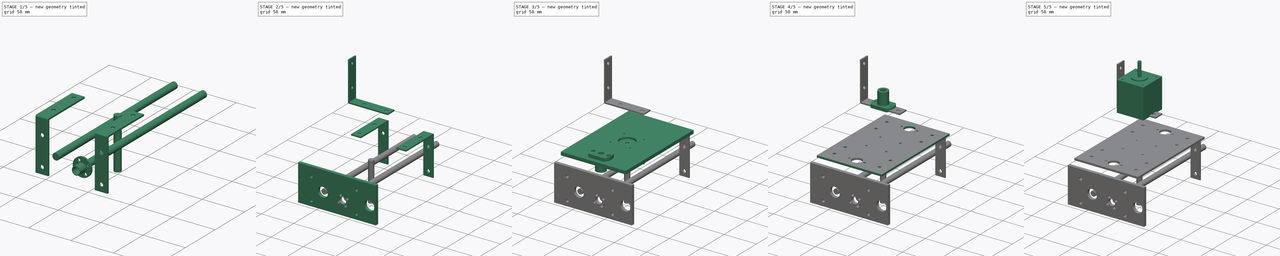
[diagram: build sequence overview — one tinted view per stage of 5, left to right]
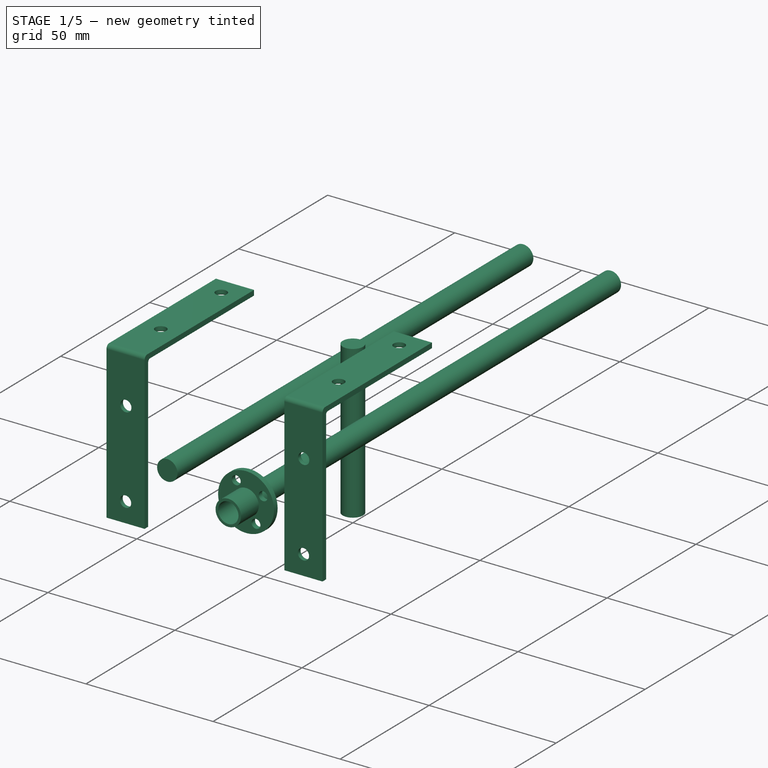
[diagram: stage 1 of 5 — iso view after this stage's code; geometry added in this stage tinted green]
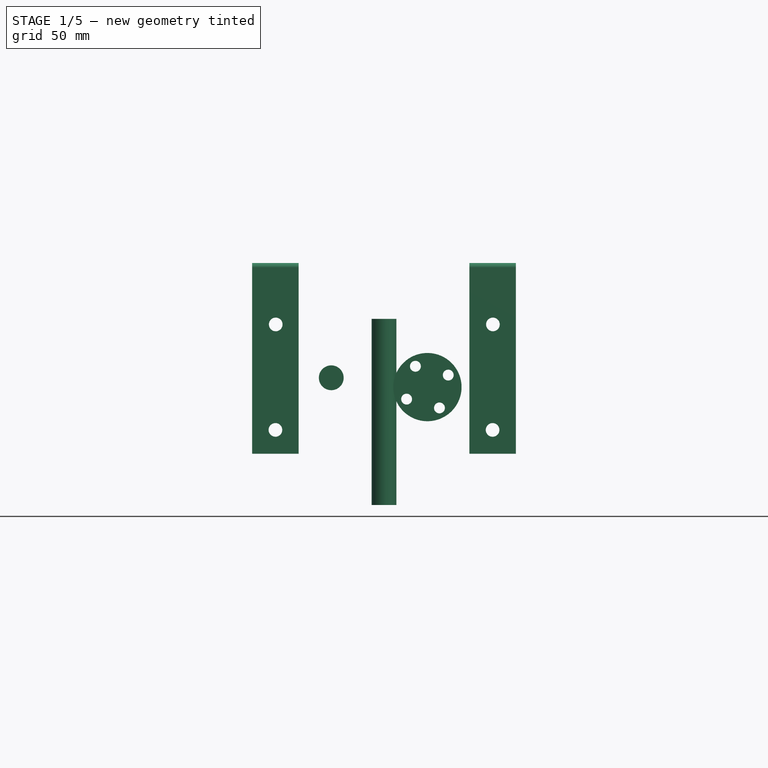
[diagram: stage 1 of 5 — front view after this stage's code; geometry added in this stage tinted green]
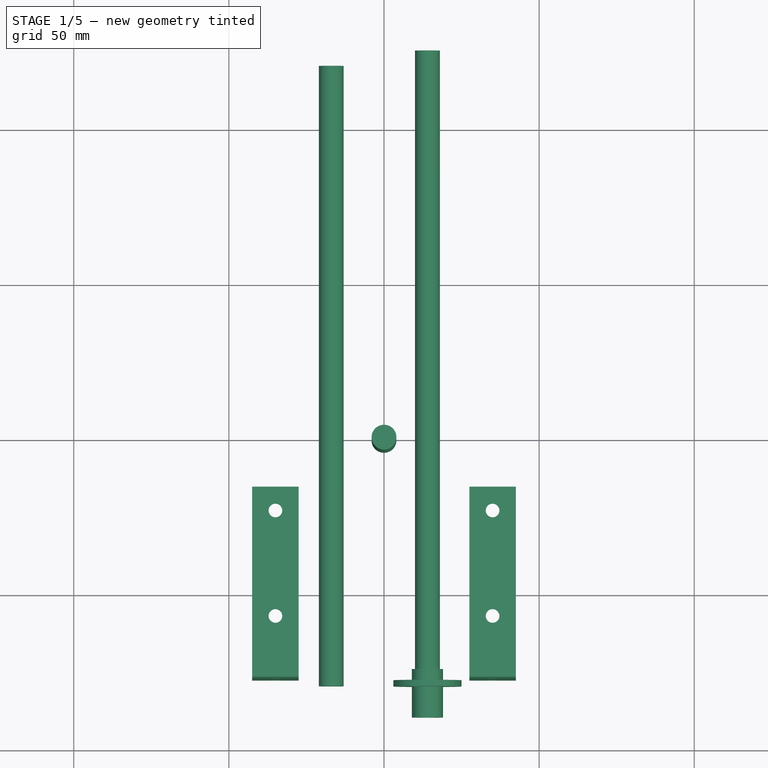
[diagram: stage 1 of 5 — top view after this stage's code; geometry added in this stage tinted green]
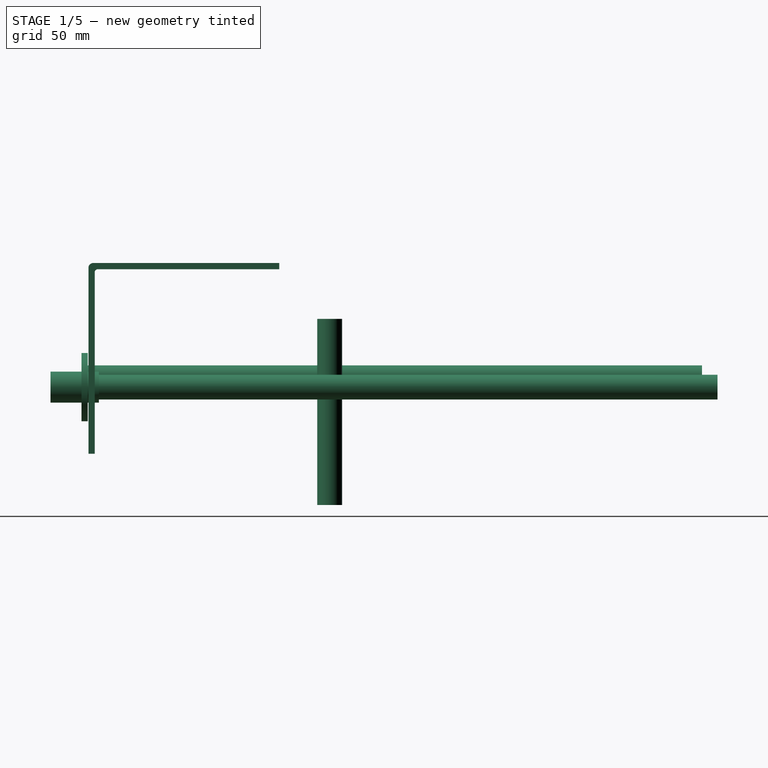
[diagram: stage 1 of 5 — right view after this stage's code; geometry added in this stage tinted green]
FCSTD DOCUMENT  (FreeCAD 0.17R13541 (Git))
Label: pieceTop
License: All rights reserved
LicenseURL: http://en.wikipedia.org/wiki/All_rights_reserved
objects: Sketcher::SketchObject×40, PartDesign::Pocket×23, PartDesign::Body×15, PartDesign::Pad×14, PartDesign::ShapeBinder×11, PartDesign::FeatureBase×8, PartDesign::Fillet×4, Part::Cylinder×3, PartDesign::Plane×2, App::Part×2, App::DocumentObjectGroup×1
note: 157 computed .brp shape members not serialized (recipe doc carries the construction recipe); baked Part::Feature solids carry a one-line shape summary decoded from their .brp

FEATURE [PartDesign::FeatureBase] Clone007  label="L3"
  Placement = pos=(35,-47,-55) rot=(0.707107,0.707107,0;3.14159rad)
FEATURE [PartDesign::FeatureBase] Clone008  label="L4"
  Placement = pos=(-35,-47,-55) rot=(0.707107,0.707107,0;3.14159rad)
FEATURE [Part::Cylinder] Cylinder
  Angle = 360
  AttacherType = Attacher::AttachEngine3D
  Height = 60
  Placement = pos=(0,0,-133) rot=(0,0,1;0rad)
  Radius = 4
FEATURE [PartDesign::ShapeBinder] ShapeBinder007
  Placement = pos=(0,0,-133) rot=(0,0,1;0rad)
  Support = -> [Cylinder]
FEATURE [Sketcher::SketchObject] Sketch039
  MapMode = 5
  Support = -> [XY_Plane020]
  sketch-geometry (1):
    g0: Circle CenterX=0 CenterY=0 CenterZ=0 NormalX=0 NormalY=0 NormalZ=1 AngleXU=0 Radius=11
  constraints (2):
    c: Coincident(g0,g-1)
    c: Radius(g0) = 11
FEATURE [PartDesign::Pad] Pad014
  Length = 2
  Length2 = 100
  Profile = -> Sketch039
  Type = 0
FEATURE [Sketcher::SketchObject] Sketch040
  MapMode = 5
  Placement = pos=(0,0,2) rot=(0,0,1;0rad)
  Support = -> [Pad014]
FEATURE [Sketcher::SketchObject] Sketch041
  MapMode = 5
  Placement = pos=(0,0,2) rot=(0,0,1;0rad)
  Support = -> [Pad014]
  sketch-geometry (5):
    g0: Circle CenterX=0 CenterY=0 CenterZ=0 NormalX=0 NormalY=0 NormalZ=1 AngleXU=0 Radius=4
    g1: Circle CenterX=0 CenterY=-7.75 CenterZ=0 NormalX=0 NormalY=0 NormalZ=1 AngleXU=0 Radius=1.75
    g2: Circle CenterX=-7.75 CenterY=0 CenterZ=0 NormalX=0 NormalY=0 NormalZ=1 AngleXU=0 Radius=1.75
    g3: Circle CenterX=0 CenterY=7.75 CenterZ=0 NormalX=0 NormalY=0 NormalZ=1 AngleXU=0 Radius=1.75
    g4: Circle CenterX=7.75 CenterY=0 CenterZ=0 NormalX=0 NormalY=0 NormalZ=1 AngleXU=0 Radius=1.75
  constraints (12):
    c: Radius(g0) = 4
    c: PointOnObject(g1,g-2)
    c: Radius(g1) = 1.75
    c: DistanceY(g1,g-1) = 7.75
    c: Radius(g2) = 1.75
    c: DistanceX(g2,g-1) = 7.75
    c: DistanceY(g-1,g2) = 0
    c: PointOnObject(g3,g-2)
    c: Radius(g3) = 1.75
    c: DistanceY(g-1,g3) = 7.75
    c: DistanceX(g-1,g4) = 7.75
    c: Radius(g4) = 1.75
FEATURE [PartDesign::Pocket] Pocket024
  BaseFeature = -> Pad014
  Length = 5
  Length2 = 100
  Profile = -> Sketch041
  Type = 1
FEATURE [Sketcher::SketchObject] Sketch042
  MapMode = 5
  Placement = pos=(0,0,2) rot=(0,0,1;0rad)
  Support = -> [Pocket024]
  sketch-geometry (1):
    g0: Circle CenterX=0 CenterY=0 CenterZ=0 NormalX=0 NormalY=0 NormalZ=1 AngleXU=0 Radius=5
  constraints (2):
    c: PointOnObject(g0,g-1)
    c: Radius(g0) = 5
FEATURE [PartDesign::Pad] Pad015
  BaseFeature = -> Pocket024
  Length = 10
  Length2 = 5.6
  Profile = -> Sketch042
  Type = 4
FEATURE [Sketcher::SketchObject] Sketch043
  ExternalGeometry = -> [Pad015]
  MapMode = 5
  Placement = pos=(0,0,12) rot=(0,0,1;0rad)
  Support = -> [Pad015]
  sketch-geometry (1):
    g0: Circle CenterX=0 CenterY=0 CenterZ=0 NormalX=0 NormalY=0 NormalZ=1 AngleXU=0 Radius=4
  constraints (2):
    c: Coincident(g0,g-1)
    c: Radius(g0) = 4
FEATURE [PartDesign::Pocket] Pocket025
  BaseFeature = -> Pad015
  Length = 5
  Length2 = 100
  Profile = -> Sketch043
  Type = 1
FEATURE [Sketcher::SketchObject] Sketch044
  MapMode = 5
  Support = -> [XY_Plane020]
FEATURE [PartDesign::Body] Body008  label="Nut"
  Group = -> [Sketch039,Pad014,Sketch040,Sketch041,Pocket024,Sketch042,Pad015,Sketch043,Pocket025,Sketch044]
  Origin = -> Origin020
  Tip = -> Pocket025
FEATURE [App::DocumentObjectGroup] Group
  Group = -> [Body008]
FEATURE [PartDesign::FeatureBase] Clone009  label="NutClone"
  BaseFeature = -> Body008
  Placement = pos=(14,-78,-95) rot=(0.935113,-0.250563,0.250563;1.63783rad)
FEATURE [PartDesign::Body] Body006
  Group = -> [Sketch033,ShapeBinder005,ShapeBinder006,Pad013,Sketch038,Pocket023,ShapeBinder007,ShapeBinder008]
  Origin = -> Origin013
  Tip = -> Pocket023
FEATURE [Part::Cylinder] Cylinder001
  Angle = 360
  AttacherType = Attacher::AttachEngine3D
  Height = 200
  Placement = pos=(14,125,-95) rot=(1,0,0;1.5708rad)
  Radius = 4
FEATURE [Part::Cylinder] Cylinder002
  Angle = 360
  AttacherType = Attacher::AttachEngine3D
  Height = 200
  Placement = pos=(-17,120,-92) rot=(1,0,0;1.5708rad)
  Radius = 4
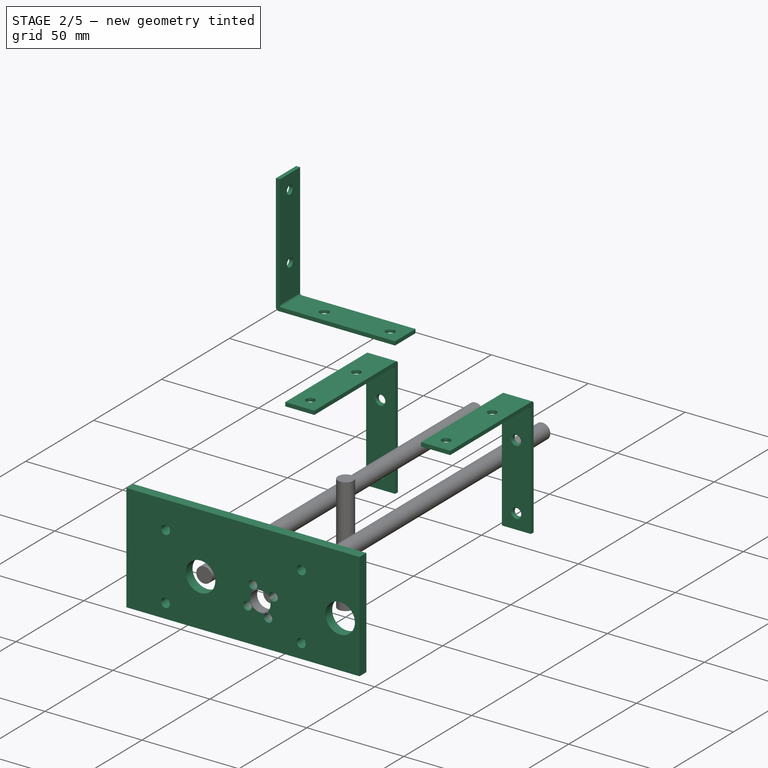
[diagram: stage 2 of 5 — iso view after this stage's code; geometry added in this stage tinted green]
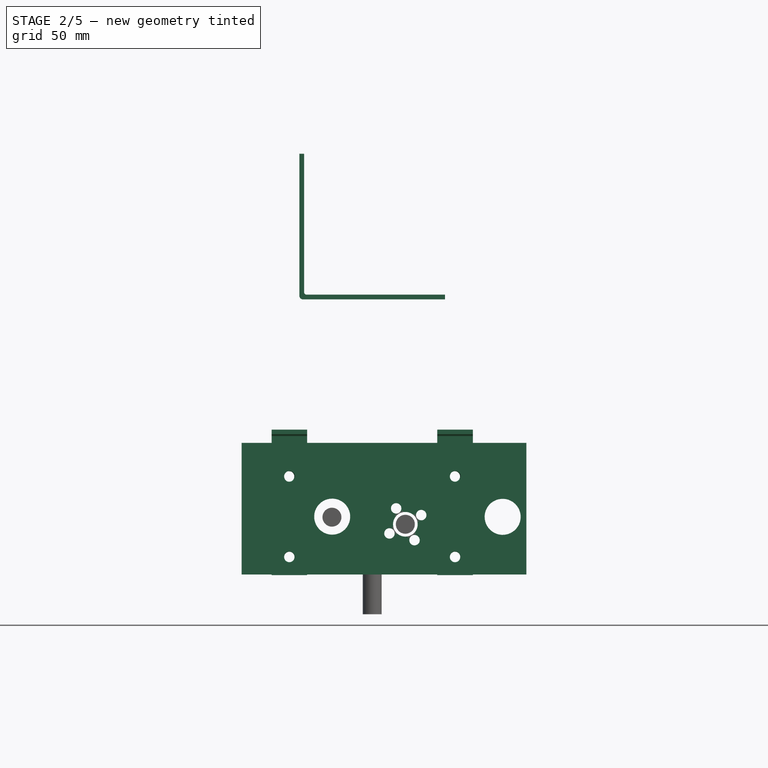
[diagram: stage 2 of 5 — front view after this stage's code; geometry added in this stage tinted green]
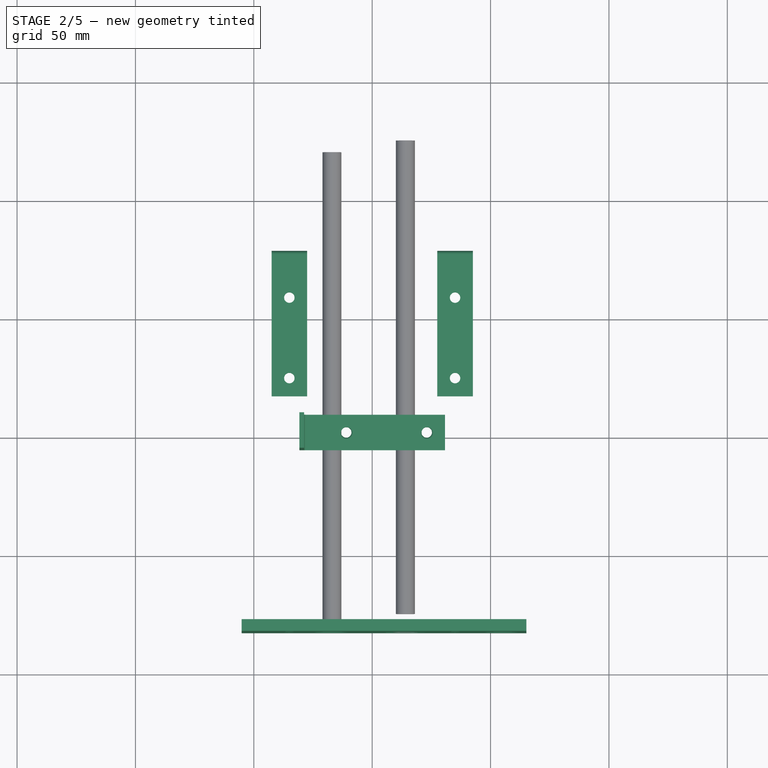
[diagram: stage 2 of 5 — top view after this stage's code; geometry added in this stage tinted green]
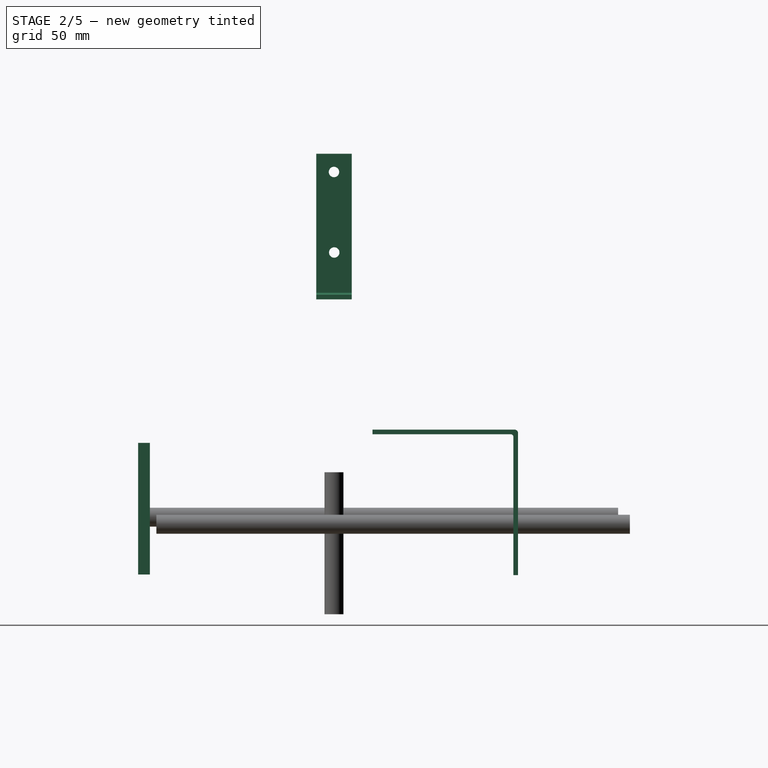
[diagram: stage 2 of 5 — right view after this stage's code; geometry added in this stage tinted green]
FEATURE [PartDesign::Body] Body005
  Group = -> [ShapeBinder003,DatumPlane,Sketch031,Pad010,Sketch032,Pocket020,ShapeBinder004]
  Origin = -> Origin005
  Tip = -> Pocket020
FEATURE [PartDesign::ShapeBinder] CopyClone004
  Placement = pos=(-35,-52,-55) rot=(0.707107,0.707107,0;3.14159rad)
FEATURE [PartDesign::Plane] DatumPlane001
  MapMode = 5
  Placement = pos=(-35,-77.75,-55) rot=(0,0.707107,-0.707107;3.14159rad)
  Support = -> [CopyClone004]
FEATURE [PartDesign::Body] CloneBody
  Group = -> [Clone,DatumPlane001,CopyClone004]
  Origin = -> Origin010
  Tip = -> Clone
FEATURE [App::Part] Part
  Group = -> [Clone002Body,Clone001Body,CloneBody]
  License = CC BY 3.0
  LicenseURL = http://creativecommons.org/licenses/by/3.0/
  Origin = -> Origin006
FEATURE [Sketcher::SketchObject] Sketch034
  MapMode = 5
  Support = -> [XY_Plane014]
  sketch-geometry (4):
    g0: LineSegment StartX=-30.75 StartY=7.5 StartZ=0 EndX=30.75 EndY=7.5 EndZ=0
    g1: LineSegment StartX=30.75 StartY=7.5 StartZ=0 EndX=30.75 EndY=-7.5 EndZ=0
    g2: LineSegment StartX=30.75 StartY=-7.5 StartZ=0 EndX=-30.75 EndY=-7.5 EndZ=0
    g3: LineSegment StartX=-30.75 StartY=-7.5 StartZ=0 EndX=-30.75 EndY=7.5 EndZ=0
  constraints (11):
    c: Coincident(g0,g1)
    c: Coincident(g1,g2)
    c: Coincident(g2,g3)
    c: Coincident(g3,g0)
    c: Horizontal(g0)
    c: Horizontal(g2)
    c: Vertical(g1)
    c: Vertical(g3)
    c: DistanceX(g0,g0) = 61.5
    c: DistanceY(g1,g1) = 15
    c: Symmetric(g0,g1,g-1)
FEATURE [PartDesign::Pad] Pad011
  Length = 2
  Length2 = 100
  Profile = -> Sketch034
  Type = 0
FEATURE [Sketcher::SketchObject] Sketch035
  ExternalGeometry = -> [Pad011]
  MapMode = 5
  Placement = pos=(0,0,2) rot=(0,0,1;0rad)
  Support = -> [Pad011]
  sketch-geometry (5):
    g0: LineSegment StartX=-30.75 StartY=7.5 StartZ=0 EndX=-28.75 EndY=7.5 EndZ=0
    g1: LineSegment StartX=-28.75 StartY=7.5 StartZ=0 EndX=-28.75 EndY=-7.5 EndZ=0
    g2: LineSegment StartX=-28.75 StartY=-7.5 StartZ=0 EndX=-30.75 EndY=-7.5 EndZ=0
    g3: LineSegment StartX=-30.75 StartY=-7.5 StartZ=0 EndX=-30.75 EndY=7.5 EndZ=0
    g4: GeomPoint X=-11 Y=7.5 Z=0
  constraints (13):
    c: Coincident(g0,g1)
    c: Coincident(g1,g2)
    c: Coincident(g2,g3)
    c: Coincident(g3,g0)
    c: Horizontal(g0)
    c: Horizontal(g2)
    c: Vertical(g1)
    c: Vertical(g3)
    c: PointOnObject(g0,g-3)
    c: PointOnObject(g1,g-5)
    c: PointOnObject(g4,g-4)
    c: DistanceY(g0,g4) = 0
    c: DistanceX(g2,g2) = 2
FEATURE [PartDesign::Pad] Pad012
  BaseFeature = -> Pad011
  Length = 59.5
  Length2 = 100
  Profile = -> Sketch035
  Type = 0
FEATURE [PartDesign::Fillet] Fillet
  Base = -> Pad012 [Edge7]
  BaseFeature = -> Pad012
  Radius = 1.5
FEATURE [PartDesign::Fillet] Fillet001
  Base = -> Fillet [Edge17]
  BaseFeature = -> Fillet
  Radius = 1
FEATURE [Sketcher::SketchObject] Sketch036
  ExternalGeometry = -> [Fillet001]
  MapMode = 5
  Placement = pos=(0,0,2) rot=(0,0,1;0rad)
  Support = -> [Fillet001]
  sketch-geometry (7):
    g0: Circle CenterX=23.05 CenterY=0 CenterZ=0 NormalX=0 NormalY=0 NormalZ=1 AngleXU=0 Radius=2.2
    g1: LineSegment [constr] StartX=23.05 StartY=7.5 StartZ=0 EndX=23.05 EndY=0 EndZ=0
    g2: LineSegment [constr] StartX=23.05 StartY=0 StartZ=0 EndX=23.05 EndY=-7.5 EndZ=0
    g3: GeomPoint X=30.75 Y=-3.56525 Z=0
    g4: GeomPoint X=-8 Y=7.5 Z=0
    g5: GeomPoint X=-8.63892 Y=-7.5 Z=0
    g6: Circle CenterX=-10.95 CenterY=0 CenterZ=0 NormalX=0 NormalY=0 NormalZ=1 AngleXU=0 Radius=2.2
  constraints (15):
    c: Radius(g0) = 2.2
    c: PointOnObject(g1,g-3)
    c: Coincident(g1,g0)
    c: Coincident(g2,g0)
    c: PointOnObject(g2,g-4)
    c: Vertical(g2)
    c: Equal(g1,g2)
    c: Vertical(g1)
    c: PointOnObject(g3,g-5)
    c: DistanceX(g0,g3) = 7.7
    c: PointOnObject(g4,g-3)
    c: PointOnObject(g5,g-4)
    c: PointOnObject(g6,g-1)
    c: Radius(g6) = 2.2
    c: DistanceX(g6,g0) = 34
FEATURE [PartDesign::Pocket] Pocket021
  BaseFeature = -> Fillet001
  Length = 5
  Length2 = 100
  Profile = -> Sketch036
  Type = 1
FEATURE [PartDesign::Fillet] Fillet002
  Base = -> Pocket021 [Edge12,Edge11]
  BaseFeature = -> Pocket021
  Radius = 0.7
FEATURE [Sketcher::SketchObject] Sketch037
  ExternalGeometry = -> [Fillet002]
  MapMode = 5
  Placement = pos=(-28.75,0,0) rot=(0.57735,0.57735,0.57735;2.0944rad)
  Support = -> [Fillet002]
  sketch-geometry (9):
    g0: Circle CenterX=0 CenterY=53.8 CenterZ=0 NormalX=0 NormalY=0 NormalZ=1 AngleXU=0 Radius=2.2
    g1: GeomPoint X=-7.5 Y=53.8 Z=0
    g2: GeomPoint X=-3.67932 Y=61.5 Z=0
    g3: GeomPoint X=7.5 Y=53.8 Z=0
    g4: LineSegment [constr] StartX=-7.5 StartY=53.8 StartZ=0 EndX=0 EndY=53.8 EndZ=0
    g5: LineSegment [constr] StartX=7.5 StartY=53.8 StartZ=0 EndX=0 EndY=53.8 EndZ=0
    g6: Circle CenterX=0.10123 CenterY=19.8 CenterZ=0 NormalX=0 NormalY=0 NormalZ=1 AngleXU=0 Radius=2.2
    g7: LineSegment [constr] StartX=0.10123 StartY=19.8 StartZ=0 EndX=-7.5 EndY=19.8 EndZ=0
    g8: LineSegment [constr] StartX=-0.10123 StartY=31.6344 StartZ=0 EndX=7.5 EndY=31.6344 EndZ=0
  constraints (20):
    c: Radius(g0) = 2.2
    c: PointOnObject(g1,g-3)
    c: PointOnObject(g2,g-4)
    c: PointOnObject(g3,g-5)
    c: Coincident(g4,g1)
    c: Coincident(g4,g0)
    c: Coincident(g5,g3)
    c: Coincident(g5,g0)
    c: Equal(g4,g5)
    c: Horizontal(g4)
    c: Horizontal(g5)
    c: DistanceY(g0,g2) = 7.7
    c: Radius(g6) = 2.2
    c: Coincident(g7,g6)
    c: PointOnObject(g7,g-3)
    c: PointOnObject(g8,g-5)
    c: Equal(g7,g8)
    c: Horizontal(g7)
    c: Horizontal(g8)
    c: DistanceY(g6,g0) = 34
FEATURE [PartDesign::Pocket] Pocket022
  BaseFeature = -> Fillet002
  Length = 5
  Length2 = 100
  Profile = -> Sketch037
  Type = 1
FEATURE [PartDesign::Body] Body007  label="L6-original"
  Group = -> [Sketch034,Pad011,Sketch035,Pad012,Fillet,Fillet001,Sketch036,Pocket021,Fillet002,Sketch037,Pocket022,Fillet003]
  Origin = -> Origin014
  Tip = -> Fillet003
FEATURE [PartDesign::FeatureBase] Clone005  label="L1"
  Placement = pos=(-35,47,-55) rot=(0.707107,-0.707107,0;3.14159rad)
FEATURE [PartDesign::FeatureBase] Clone006  label="L2"
  Placement = pos=(35,47,-55) rot=(0.707107,-0.707107,0;3.14159rad)
FEATURE [PartDesign::Body] Clone008Body
  Group = -> [Clone008]
  Origin = -> Origin016
  Tip = -> Clone008
FEATURE [PartDesign::Body] Clone007Body
  Group = -> [Clone007]
  Origin = -> Origin017
  Tip = -> Clone007
FEATURE [PartDesign::Body] Clone005Body
  Group = -> [Clone005]
  Origin = -> Origin018
  Tip = -> Clone005
FEATURE [PartDesign::Body] Clone006Body  label="L005"
  Group = -> [Clone006]
  Origin = -> Origin019
  Tip = -> Clone006
FEATURE [App::Part] Part001
  Group = -> [Clone008Body,Clone007Body,Clone005Body,Clone006Body]
  License = CC BY 3.0
  LicenseURL = http://creativecommons.org/licenses/by/3.0/
  Origin = -> Origin015
FEATURE [PartDesign::ShapeBinder] ShapeBinder005  label="L4-Face"
  Placement = pos=(-35,-47,-55) rot=(0.707107,0.707107,0;3.14159rad)
  Support = -> [Clone008]
FEATURE [PartDesign::ShapeBinder] ShapeBinder006  label="L3-Face"
  Placement = pos=(35,-47,-55) rot=(0.707107,0.707107,0;3.14159rad)
  Support = -> [Clone007]
FEATURE [Sketcher::SketchObject] Sketch033
  ExternalGeometry = -> [ShapeBinder006,ShapeBinder005]
  MapMode = 5
  Placement = pos=(-35,-77.75,-55) rot=(0,0.707107,-0.707107;3.14159rad)
  sketch-geometry (4):
    g0: LineSegment StartX=20.1315 StartY=5.61764 StartZ=0 EndX=-100.101 EndY=5.61764 EndZ=0
    g1: LineSegment StartX=-100.101 StartY=5.61764 StartZ=0 EndX=-100.101 EndY=61.2044 EndZ=0
    g2: LineSegment StartX=-100.101 StartY=61.2044 StartZ=0 EndX=20.1315 EndY=61.2044 EndZ=0
    g3: LineSegment StartX=20.1315 StartY=61.2044 StartZ=0 EndX=20.1315 EndY=5.61764 EndZ=0
  constraints (9):
    c: Coincident(g0,g1)
    c: Coincident(g1,g2)
    c: Coincident(g2,g3)
    c: Coincident(g3,g0)
    c: Horizontal(g0)
    c: Horizontal(g2)
    c: Vertical(g1)
    c: Vertical(g3)
    c: DistanceX(g0,g-3) = 30
FEATURE [PartDesign::Pad] Pad013
  Length = 5
  Length2 = 100
  Placement = pos=(-35,-77.75,-55) rot=(0,0.707107,-0.707107;3.14159rad)
  Profile = -> Sketch033
  Type = 0
FEATURE [PartDesign::ShapeBinder] ShapeBinder008  label="Nut001"
  Placement = pos=(14,-78,-95) rot=(0.935113,-0.250563,0.250563;1.63783rad)
  Support = -> [Clone009]
FEATURE [Sketcher::SketchObject] Sketch038
  ExternalGeometry = -> [Sketch033,ShapeBinder005,ShapeBinder008]
  MapMode = 5
  Placement = pos=(-35,-82.75,-55) rot=(0,0.707107,-0.707107;3.14159rad)
  Support = -> [Pad013]
  sketch-geometry (15):
    g0: Circle CenterX=-70 CenterY=53.8 CenterZ=0 NormalX=0 NormalY=0 NormalZ=1 AngleXU=0 Radius=2.3
    g1: Circle CenterX=-70.1012 CenterY=19.8 CenterZ=0 NormalX=0 NormalY=0 NormalZ=1 AngleXU=0 Radius=2.3
    g2: Circle CenterX=0 CenterY=53.8 CenterZ=0 NormalX=0 NormalY=0 NormalZ=1 AngleXU=0 Radius=2.3
    g3: Circle CenterX=-0.10123 CenterY=19.8 CenterZ=0 NormalX=0 NormalY=0 NormalZ=1 AngleXU=0 Radius=2.3
    g4: Circle CenterX=-90.1012 CenterY=36.8597 CenterZ=0 NormalX=0 NormalY=0 NormalZ=1 AngleXU=0 Radius=7.6
    g5: LineSegment [constr] StartX=-90.1012 StartY=36.8597 StartZ=0 EndX=-70 EndY=53.8 EndZ=0
    g6: LineSegment [constr] StartX=-90.1012 StartY=36.8597 StartZ=0 EndX=-70.1012 EndY=19.8 EndZ=0
    g7: Circle CenterX=-18.1012 CenterY=36.7772 CenterZ=0 NormalX=0 NormalY=0 NormalZ=1 AngleXU=0 Radius=7.6
    g8: LineSegment [constr] StartX=-0.588034 StartY=54.2561 StartZ=0 EndX=-18.1012 EndY=36.7772 EndZ=0
    g9: LineSegment [constr] StartX=-18.1012 StartY=36.7772 StartZ=0 EndX=-0.10123 EndY=19.8 EndZ=0
    g10: Circle CenterX=-52.875 CenterY=46.7117 CenterZ=0 NormalX=0 NormalY=0 NormalZ=1 AngleXU=0 Radius=2.2
    g11: Circle CenterX=-55.7117 CenterY=36.125 CenterZ=0 NormalX=0 NormalY=0 NormalZ=1 AngleXU=0 Radius=2.2
    g12: Circle CenterX=-45.125 CenterY=33.2883 CenterZ=0 NormalX=0 NormalY=0 NormalZ=1 AngleXU=0 Radius=2.2
    g13: Circle CenterX=-42.2883 CenterY=43.875 CenterZ=0 NormalX=0 NormalY=0 NormalZ=1 AngleXU=0 Radius=2.2
    g14: Circle CenterX=-49 CenterY=40 CenterZ=0 NormalX=0 NormalY=0 NormalZ=1 AngleXU=0 Radius=5.2
  constraints (26):
    c: Radius(g2) = 2.3
    c: Radius(g3) = 2.3
    c: Radius(g1) = 2.3
    c: Radius(g0) = 2.3
    c: Coincident(g5,g4)
    c: Coincident(g5,g0)
    c: Coincident(g6,g4)
    c: Equal(g5,g6)
    c: Radius(g4) = 7.6
    c: Radius(g7) = 7.6
    c: Coincident(g8,g7)
    c: Coincident(g9,g7)
    c: Coincident(g9,g3)
    c: DistanceX(g3,g7) = -18
    c: Equal(g8,g9)
    c: Coincident(g-4,g3)
    c: Coincident(g10,g-6)
    c: Coincident(g11,g-9)
    c: Coincident(g12,g-8)
    c: Coincident(g13,g-7)
    c: Radius(g13) = 2.2
    c: Radius(g10) = 2.2
    c: Radius(g11) = 2.2
    c: Radius(g12) = 2.2
    c: Coincident(g14,g-5)
    c: Radius(g14) = 5.2
FEATURE [PartDesign::Pocket] Pocket023
  BaseFeature = -> Pad013
  Length = 5
  Length2 = 100
  Placement = pos=(-35,-77.75,-55) rot=(0,0.707107,-0.707107;3.14159rad)
  Profile = -> Sketch038
  Type = 1
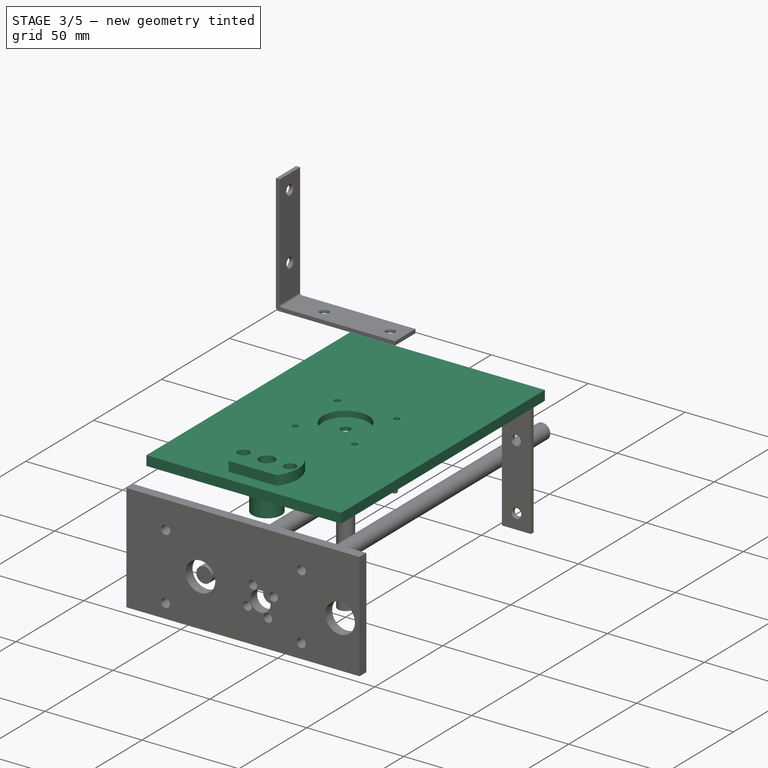
[diagram: stage 3 of 5 — iso view after this stage's code; geometry added in this stage tinted green]
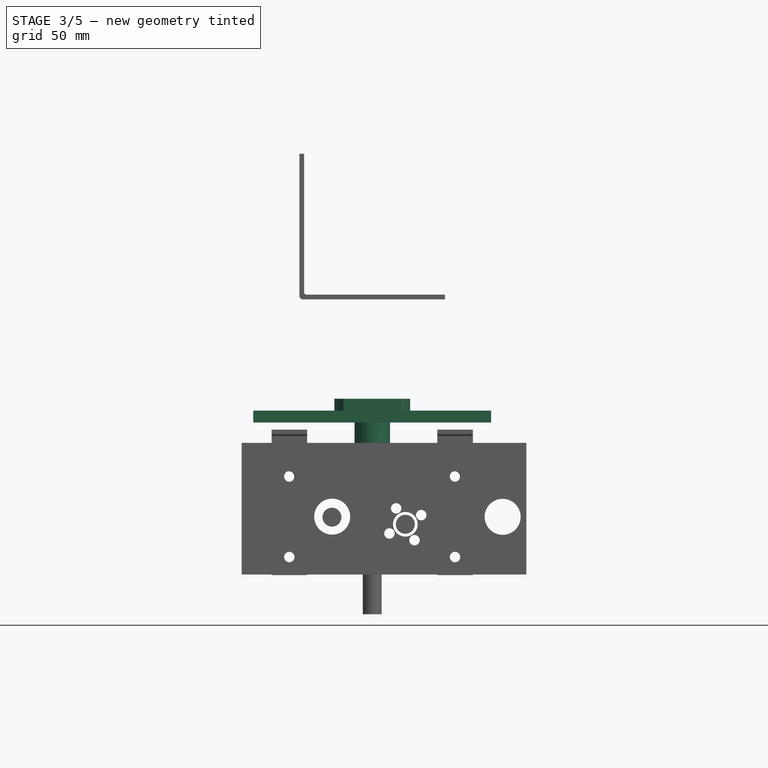
[diagram: stage 3 of 5 — front view after this stage's code; geometry added in this stage tinted green]
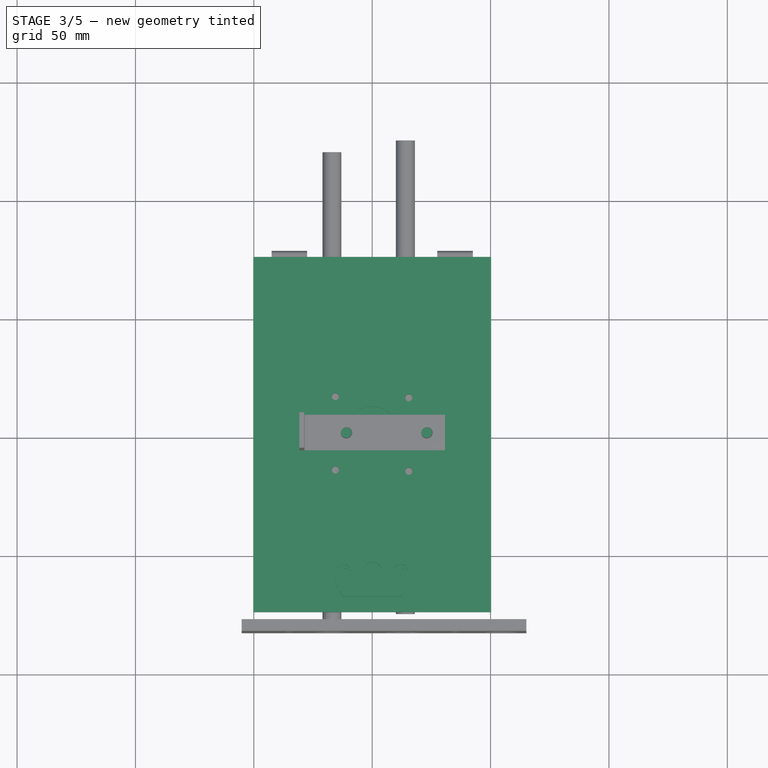
[diagram: stage 3 of 5 — top view after this stage's code; geometry added in this stage tinted green]
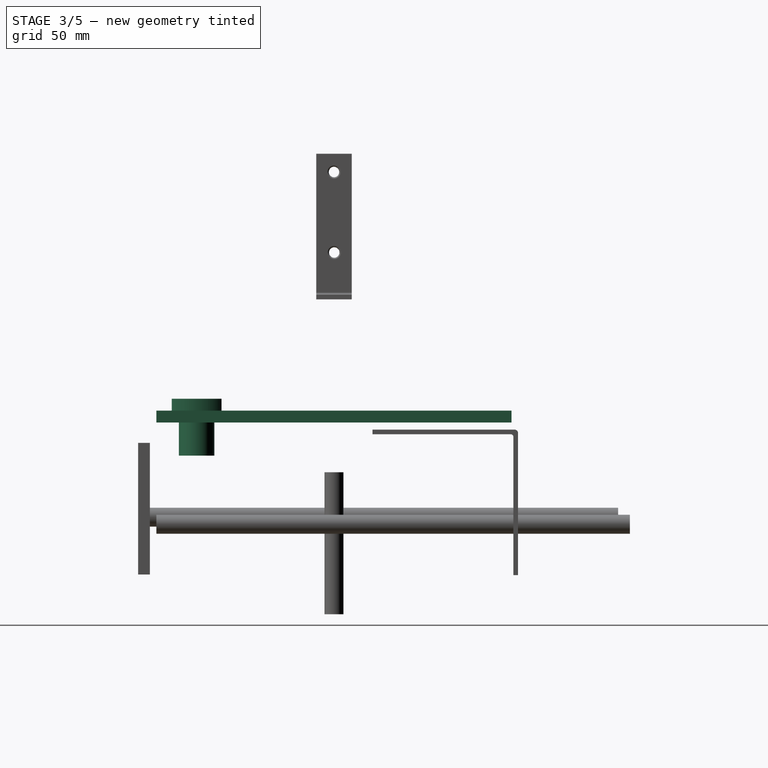
[diagram: stage 3 of 5 — right view after this stage's code; geometry added in this stage tinted green]
FEATURE [PartDesign::Body] Body002  label="Bearing2"
  Group = -> [Sketch009,Pad005,Sketch010,Pocket004,Sketch011,Pad006,Sketch012,Pocket005,Sketch013,Pocket006]
  Origin = -> Origin002
  Placement = pos=(0,-58,-42) rot=(0,1,0;3.14159rad)
  Tip = -> Pocket006
FEATURE [PartDesign::FeatureBase] Clone  label="Motor-Clone"
  Placement = pos=(0,0,0) rot=(0,1,0;3.14159rad)
FEATURE [PartDesign::ShapeBinder] CopyClone
  Placement = pos=(0,0,0) rot=(0,1,0;3.14159rad)
FEATURE [Sketcher::SketchObject] Sketch014
  MapMode = 5
  Placement = pos=(0,0,-47) rot=(0,1,0;3.14159rad)
  Support = -> [CopyClone]
  sketch-geometry (4):
    g0: LineSegment StartX=-50.2408 StartY=75 StartZ=0 EndX=50.2408 EndY=75 EndZ=0
    g1: LineSegment StartX=50.2408 StartY=75 StartZ=0 EndX=50.2408 EndY=-75 EndZ=0
    g2: LineSegment StartX=50.2408 StartY=-75 StartZ=0 EndX=-50.2408 EndY=-75 EndZ=0
    g3: LineSegment StartX=-50.2408 StartY=-75 StartZ=0 EndX=-50.2408 EndY=75 EndZ=0
  constraints (11):
    c: Coincident(g0,g1)
    c: Coincident(g1,g2)
    c: Coincident(g2,g3)
    c: Coincident(g3,g0)
    c: Horizontal(g0)
    c: Horizontal(g2)
    c: Vertical(g1)
    c: Vertical(g3)
    c: Symmetric(g0,g2,g-1)
    c: DistanceY(g1,g1) = 150
    c: Symmetric(g0,g0,g-2)
FEATURE [PartDesign::Pad] Pad007
  Length = 5
  Length2 = 100
  Placement = pos=(0,0,0) rot=(0,1,0;3.14159rad)
  Profile = -> Sketch014
  Type = 0
FEATURE [PartDesign::ShapeBinder] ShapeBinder
  Support = -> [Clone]
FEATURE [Sketcher::SketchObject] Sketch015
  ExternalGeometry = -> [ShapeBinder]
  MapMode = 5
  Placement = pos=(0,0,-47) rot=(0,0,1;3.14159rad)
  Support = -> [Pad007]
  sketch-geometry (1):
    g0: Circle CenterX=-15.5 CenterY=-15.5 CenterZ=0 NormalX=0 NormalY=0 NormalZ=1 AngleXU=0 Radius=1.5
  constraints (2):
    c: Coincident(g0,g-3)
    c: Tangent(g0,g-3)
FEATURE [PartDesign::Pocket] Pocket007
  BaseFeature = -> Pad007
  Length = 5
  Length2 = 100
  Midplane = true
  Placement = pos=(0,0,0) rot=(0,1,0;3.14159rad)
  Profile = -> Sketch015
  Type = 1
FEATURE [Sketcher::SketchObject] Sketch016
  ExternalGeometry = -> [ShapeBinder]
  MapMode = 5
  Placement = pos=(0,0,-47) rot=(0,0,1;3.14159rad)
  Support = -> [Pocket007]
  sketch-geometry (1):
    g0: Circle CenterX=15.5 CenterY=15 CenterZ=0 NormalX=0 NormalY=0 NormalZ=1 AngleXU=0 Radius=1.5
  constraints (2):
    c: Coincident(g0,g-3)
    c: Tangent(g0,g-3)
FEATURE [PartDesign::Pocket] Pocket008
  BaseFeature = -> Pocket007
  Length = 5
  Length2 = 100
  Placement = pos=(0,0,0) rot=(0,1,0;3.14159rad)
  Profile = -> Sketch016
  Type = 1
FEATURE [Sketcher::SketchObject] Sketch017
  ExternalGeometry = -> [ShapeBinder]
  MapMode = 5
  Placement = pos=(0,0,-47) rot=(0,0,1;3.14159rad)
  Support = -> [Pocket008]
  sketch-geometry (1):
    g0: Circle CenterX=-15.5 CenterY=15.5 CenterZ=0 NormalX=0 NormalY=0 NormalZ=1 AngleXU=0 Radius=1.5
  constraints (2):
    c: Coincident(g0,g-3)
    c: Tangent(g0,g-3)
FEATURE [PartDesign::Pocket] Pocket009
  BaseFeature = -> Pocket008
  Length = 5
  Length2 = 100
  Placement = pos=(0,0,0) rot=(0,1,0;3.14159rad)
  Profile = -> Sketch017
  Type = 1
FEATURE [Sketcher::SketchObject] Sketch018
  ExternalGeometry = -> [ShapeBinder]
  MapMode = 5
  Placement = pos=(0,0,-47) rot=(0,0,1;3.14159rad)
  Support = -> [Pocket009]
  sketch-geometry (1):
    g0: Circle CenterX=15.5 CenterY=-16 CenterZ=0 NormalX=0 NormalY=0 NormalZ=1 AngleXU=0 Radius=1.5
  constraints (2):
    c: Coincident(g0,g-3)
    c: Tangent(g0,g-3)
FEATURE [PartDesign::Pocket] Pocket010
  BaseFeature = -> Pocket009
  Length = 5
  Length2 = 100
  Placement = pos=(0,0,0) rot=(0,1,0;3.14159rad)
  Profile = -> Sketch018
  Type = 1
FEATURE [Sketcher::SketchObject] Sketch019
  ExternalGeometry = -> [ShapeBinder]
  MapMode = 5
  Placement = pos=(0,0,-47) rot=(0,0,1;3.14159rad)
  Support = -> [Pocket010]
  sketch-geometry (1):
    g0: Circle CenterX=0 CenterY=0 CenterZ=0 NormalX=0 NormalY=0 NormalZ=1 AngleXU=0 Radius=2.5
  constraints (2):
    c: Coincident(g0,g-1)
    c: Tangent(g0,g-3)
FEATURE [PartDesign::Pocket] Pocket011
  BaseFeature = -> Pocket010
  Length = 5
  Length2 = 100
  Placement = pos=(0,0,0) rot=(0,1,0;3.14159rad)
  Profile = -> Sketch019
  Type = 1
FEATURE [Sketcher::SketchObject] Sketch020
  ExternalGeometry = -> [ShapeBinder]
  MapMode = 5
  Placement = pos=(0,0,-47) rot=(0,0,1;3.14159rad)
  Support = -> [Pocket011]
  sketch-geometry (1):
    g0: Circle CenterX=0 CenterY=0 CenterZ=0 NormalX=0 NormalY=0 NormalZ=1 AngleXU=0 Radius=11.789
  constraints (1):
    c: Coincident(g0,g-1)
FEATURE [PartDesign::Pocket] Pocket012
  BaseFeature = -> Pocket011
  Length = 3
  Length2 = 100
  Placement = pos=(0,0,0) rot=(0,1,0;3.14159rad)
  Profile = -> Sketch020
  Type = 0
FEATURE [PartDesign::FeatureBase] Clone002  label="Bearing2-Clone"
  Placement = pos=(0,-58,-42) rot=(0,1,0;3.14159rad)
FEATURE [PartDesign::Fillet] Fillet003
  Base = -> Pocket022 [Edge40,Edge41]
  BaseFeature = -> Pocket022
  Radius = 0.7
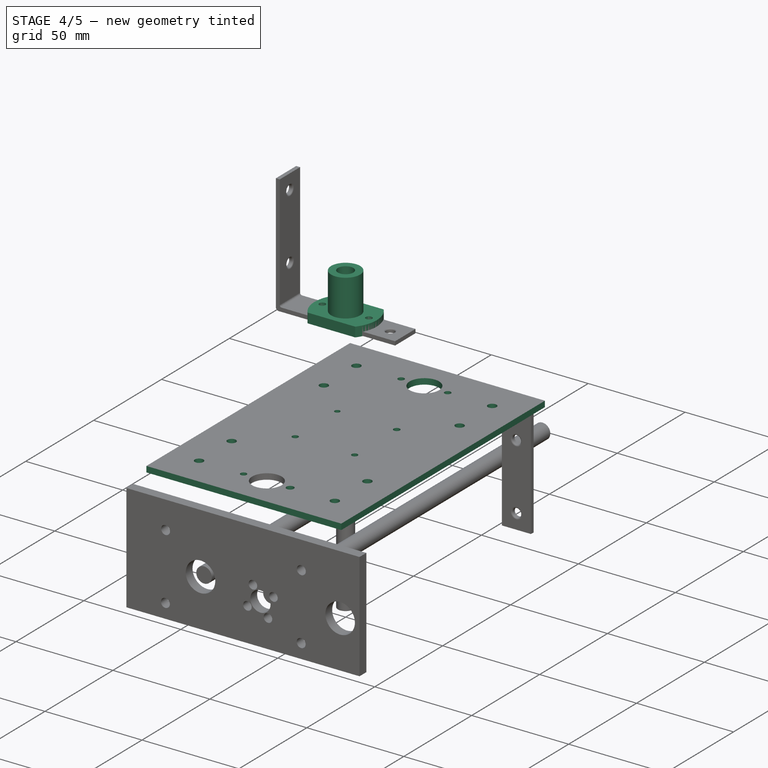
[diagram: stage 4 of 5 — iso view after this stage's code; geometry added in this stage tinted green]
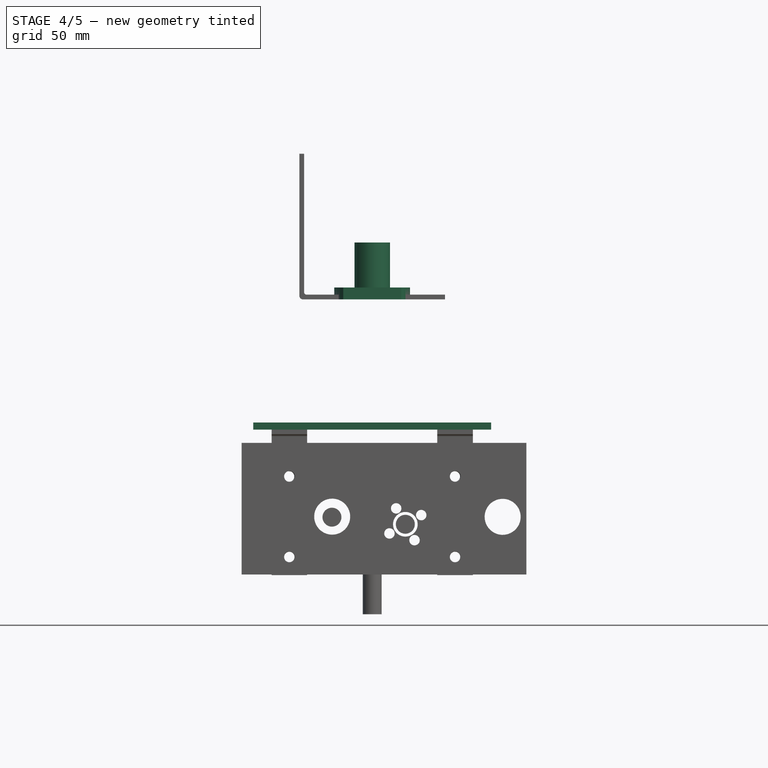
[diagram: stage 4 of 5 — front view after this stage's code; geometry added in this stage tinted green]
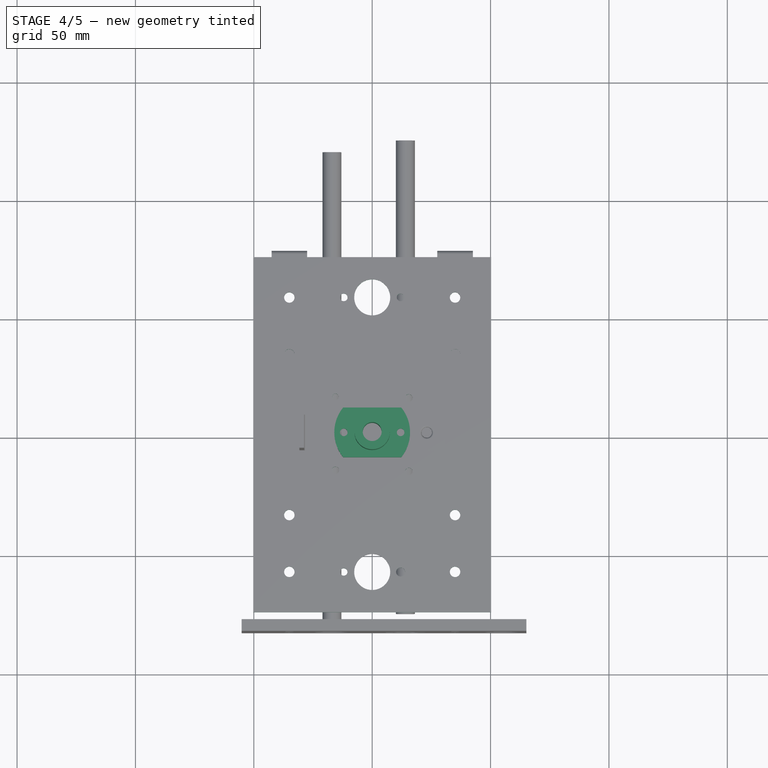
[diagram: stage 4 of 5 — top view after this stage's code; geometry added in this stage tinted green]
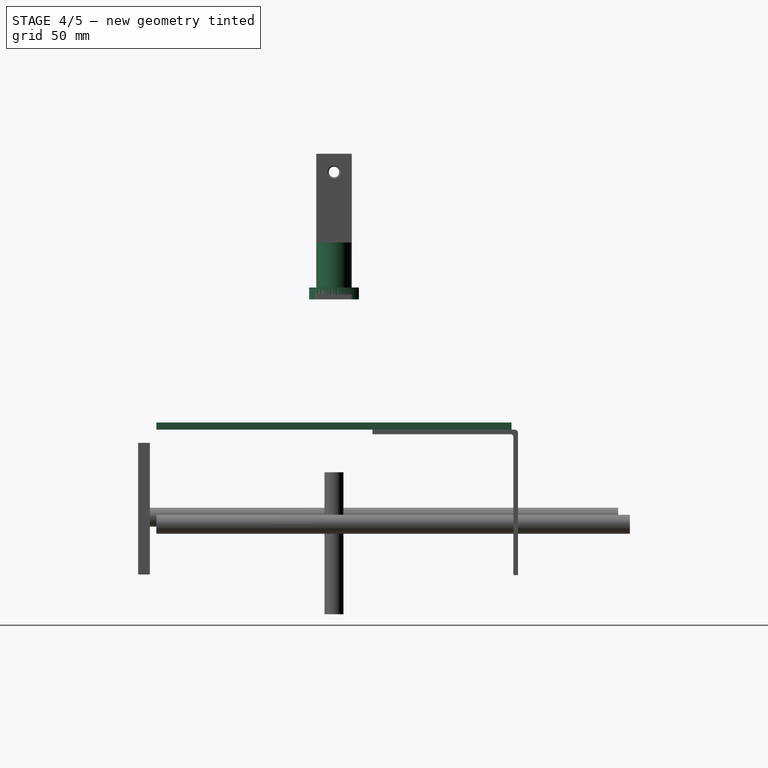
[diagram: stage 4 of 5 — right view after this stage's code; geometry added in this stage tinted green]
FEATURE [PartDesign::Body] Body001  label="Bearing1"
  Group = -> [Sketch004,Pad003,Sketch005,Pocket001,Sketch006,Pad004,Sketch007,Pocket002,Sketch008,Pocket003]
  Origin = -> Origin001
  Placement = pos=(0,58,-42) rot=(0,1,0;3.14159rad)
  Tip = -> Pocket003
FEATURE [Sketcher::SketchObject] Sketch009
  MapMode = 5
  Support = -> [XY_Plane002]
  sketch-geometry (4):
    g0: LineSegment StartX=-12.25 StartY=-10.5 StartZ=0 EndX=12.25 EndY=-10.5 EndZ=0
    g1: LineSegment StartX=12.25 StartY=10.5 StartZ=0 EndX=-12.25 EndY=10.5 EndZ=0
    g2: ArcOfCircle CenterX=0.540854 CenterY=0 CenterZ=0 NormalX=0 NormalY=0 NormalZ=1 AngleXU=0 Radius=16.5486 StartAngle=2.45424 EndAngle=3.82895
    g3: ArcOfCircle CenterX=-0.603398 CenterY=0 CenterZ=0 NormalX=0 NormalY=0 NormalZ=1 AngleXU=0 Radius=16.597 StartAngle=5.59822 EndAngle=6.96815
  constraints (7):
    c: Horizontal(g0)
    c: Horizontal(g1)
    c: PointOnObject(g0,g2)
    c: Coincident(g2,g1)
    c: PointOnObject(g1,g3)
    c: Coincident(g3,g0)
    c: Coincident(g3,g1)
FEATURE [PartDesign::Pad] Pad005
  Length = 5
  Length2 = 100
  Profile = -> Sketch009
  Type = 0
FEATURE [Sketcher::SketchObject] Sketch010
  MapMode = 5
  Placement = pos=(0,0,5) rot=(0,0,1;0rad)
  Support = -> [Pad005]
  sketch-geometry (2):
    g0: Circle CenterX=-12 CenterY=0 CenterZ=0 NormalX=0 NormalY=0 NormalZ=1 AngleXU=0 Radius=1.6
    g1: Circle CenterX=12 CenterY=0 CenterZ=0 NormalX=0 NormalY=0 NormalZ=1 AngleXU=0 Radius=1.6
  constraints (6):
    c: PointOnObject(g0,g-1)
    c: Radius(g0) = 1.6
    c: DistanceX(g0,g-1) = 12
    c: PointOnObject(g1,g-1)
    c: Radius(g1) = 1.6
    c: DistanceX(g-1,g1) = 12
FEATURE [PartDesign::Pocket] Pocket004
  BaseFeature = -> Pad005
  Length = 5
  Length2 = 100
  Profile = -> Sketch010
  Type = 1
FEATURE [Sketcher::SketchObject] Sketch011
  MapMode = 5
  Placement = pos=(0,0,5) rot=(0,0,1;0rad)
  Support = -> [Pocket004]
  sketch-geometry (1):
    g0: Circle CenterX=0 CenterY=0 CenterZ=0 NormalX=0 NormalY=0 NormalZ=1 AngleXU=0 Radius=7.5
  constraints (2):
    c: Coincident(g0,g-1)
    c: Radius(g0) = 7.5
FEATURE [PartDesign::Pad] Pad006
  BaseFeature = -> Pocket004
  Length = 19
  Length2 = 100
  Profile = -> Sketch011
  Type = 0
FEATURE [Sketcher::SketchObject] Sketch012
  MapMode = 5
  Placement = pos=(0,0,24) rot=(0,0,1;0rad)
  Support = -> [Pad006]
  sketch-geometry (1):
    g0: Circle CenterX=0 CenterY=0 CenterZ=0 NormalX=0 NormalY=0 NormalZ=1 AngleXU=0 Radius=4
  constraints (2):
    c: Coincident(g0,g-1)
    c: Radius(g0) = 4
FEATURE [PartDesign::Pocket] Pocket005
  BaseFeature = -> Pad006
  Length = 5
  Length2 = 100
  Profile = -> Sketch012
  Type = 1
FEATURE [PartDesign::FeatureBase] Clone001  label="Bearing1-Clone"
  Placement = pos=(0,58,-42) rot=(0,1,0;3.14159rad)
FEATURE [PartDesign::ShapeBinder] ShapeBinder001
  Placement = pos=(0,58,-42) rot=(0,1,0;3.14159rad)
  Support = -> [Clone001]
FEATURE [PartDesign::ShapeBinder] ShapeBinder002
  Support = -> [Clone002]
FEATURE [Sketcher::SketchObject] Sketch022
  ExternalGeometry = -> [ShapeBinder002]
  MapMode = 5
  Placement = pos=(0,0,-47) rot=(0,0,1;3.14159rad)
  sketch-geometry (2):
    g0: Circle CenterX=12 CenterY=58 CenterZ=0 NormalX=0 NormalY=0 NormalZ=1 AngleXU=0 Radius=1.7555
    g1: Circle CenterX=-12 CenterY=58 CenterZ=0 NormalX=0 NormalY=0 NormalZ=1 AngleXU=0 Radius=1.7555
  constraints (1):
    c: Coincident(g0,g-3)
FEATURE [PartDesign::Pocket] Pocket014
  BaseFeature = -> Pocket012
  Length = 5
  Length2 = 100
  Placement = pos=(0,0,0) rot=(0,1,0;3.14159rad)
  Profile = -> Sketch022
  Type = 1
FEATURE [Sketcher::SketchObject] Sketch023
  ExternalGeometry = -> [ShapeBinder002]
  MapMode = 5
  Placement = pos=(0,0,-52) rot=(0,1,0;3.14159rad)
  Support = -> [Pocket014]
  sketch-geometry (1):
    g0: Circle CenterX=0 CenterY=-58 CenterZ=0 NormalX=0 NormalY=0 NormalZ=1 AngleXU=0 Radius=7.5
FEATURE [PartDesign::Pocket] Pocket015
  BaseFeature = -> Pocket014
  Length = 5
  Length2 = 100
  Placement = pos=(0,0,0) rot=(0,1,0;3.14159rad)
  Profile = -> Sketch023
  Type = 1
FEATURE [Sketcher::SketchObject] Sketch024
  ExternalGeometry = -> [ShapeBinder001]
  MapMode = 5
  Placement = pos=(0,0,-52) rot=(0,1,0;3.14159rad)
  Support = -> [Pocket015]
  sketch-geometry (1):
    g0: Circle CenterX=0 CenterY=58 CenterZ=0 NormalX=0 NormalY=0 NormalZ=1 AngleXU=0 Radius=7.5
FEATURE [PartDesign::Pocket] Pocket016
  BaseFeature = -> Pocket015
  Length = 5
  Length2 = 100
  Placement = pos=(0,0,0) rot=(0,1,0;3.14159rad)
  Profile = -> Sketch024
  Type = 1
FEATURE [Sketcher::SketchObject] Sketch025
  ExternalGeometry = -> [ShapeBinder001]
  MapMode = 5
  Placement = pos=(0,0,-47) rot=(0,0,1;3.14159rad)
  Support = -> [Pocket016]
  sketch-geometry (2):
    g0: Circle CenterX=-12 CenterY=-58 CenterZ=0 NormalX=0 NormalY=0 NormalZ=1 AngleXU=0 Radius=1.6
    g1: Circle CenterX=12 CenterY=-58 CenterZ=0 NormalX=0 NormalY=0 NormalZ=1 AngleXU=0 Radius=1.6
FEATURE [PartDesign::Pocket] Pocket017
  BaseFeature = -> Pocket016
  Length = 5
  Length2 = 100
  Placement = pos=(0,0,0) rot=(0,1,0;3.14159rad)
  Profile = -> Sketch025
  Type = 1
FEATURE [Sketcher::SketchObject] Sketch030
  ExternalGeometry = -> [Pocket017]
  MapMode = 5
  Placement = pos=(0,0,-52) rot=(0,1,0;3.14159rad)
  Support = -> [Pocket017]
  sketch-geometry (4):
    g0: LineSegment StartX=-50.2408 StartY=75 StartZ=0 EndX=50.2408 EndY=75 EndZ=0
    g1: LineSegment StartX=50.2408 StartY=75 StartZ=0 EndX=50.2408 EndY=-75 EndZ=0
    g2: LineSegment StartX=50.2408 StartY=-75 StartZ=0 EndX=-50.2408 EndY=-75 EndZ=0
    g3: LineSegment StartX=-50.2408 StartY=-75 StartZ=0 EndX=-50.2408 EndY=75 EndZ=0
  constraints (10):
    c: Coincident(g0,g1)
    c: Coincident(g1,g2)
    c: Coincident(g2,g3)
    c: Coincident(g3,g0)
    c: Horizontal(g0)
    c: Horizontal(g2)
    c: Vertical(g1)
    c: Vertical(g3)
    c: Coincident(g0,g-4)
    c: Coincident(g1,g-6)
FEATURE [PartDesign::Body] Body003  label="Base"
  Group = -> [CopyClone,Sketch014,Pad007,ShapeBinder,Sketch015,Pocket007,Sketch016,Pocket008,Sketch017,Pocket009,Sketch018,Pocket010,Sketch019,Pocket011,Sketch020,Pocket012,ShapeBinder001,ShapeBinder002,Sketch022,Pocket014,Sketch023,Pocket015,Sketch024,Pocket016,Sketch025,Pocket017,Sketch030]
  Origin = -> Origin003
  Tip = -> Pocket017
FEATURE [PartDesign::ShapeBinder] ShapeBinder003
  Placement = pos=(0,0,0) rot=(0,1,0;3.14159rad)
  Support = -> [Pocket017]
FEATURE [PartDesign::Plane] DatumPlane
  MapMode = 5
  Placement = pos=(0,0,-52) rot=(0,1,0;3.14159rad)
  Support = -> [ShapeBinder003]
FEATURE [Sketcher::SketchObject] Sketch031
  ExternalGeometry = -> [ShapeBinder003]
  MapMode = 5
  Placement = pos=(0,0,-52) rot=(0,1,0;3.14159rad)
  Support = -> [DatumPlane]
  sketch-geometry (4):
    g0: LineSegment StartX=-50.2408 StartY=75 StartZ=0 EndX=50.2408 EndY=75 EndZ=0
    g1: LineSegment StartX=50.2408 StartY=75 StartZ=0 EndX=50.2408 EndY=-75 EndZ=0
    g2: LineSegment StartX=50.2408 StartY=-75 StartZ=0 EndX=-50.2408 EndY=-75 EndZ=0
    g3: LineSegment StartX=-50.2408 StartY=-75 StartZ=0 EndX=-50.2408 EndY=75 EndZ=0
  constraints (10):
    c: Coincident(g0,g1)
    c: Coincident(g1,g2)
    c: Coincident(g2,g3)
    c: Coincident(g3,g0)
    c: Horizontal(g0)
    c: Horizontal(g2)
    c: Vertical(g1)
    c: Vertical(g3)
    c: Coincident(g0,g-4)
    c: Coincident(g1,g-5)
FEATURE [PartDesign::Pad] Pad010
  Length = 3
  Length2 = 100
  Placement = pos=(0,0,-52) rot=(0,1,0;3.14159rad)
  Profile = -> Sketch031
  Type = 0
FEATURE [PartDesign::Body] Clone002Body
  Group = -> [Clone002]
  Origin = -> Origin007
  Tip = -> Clone002
FEATURE [PartDesign::Body] Clone001Body
  Group = -> [Clone001]
  Origin = -> Origin009
  Tip = -> Clone001
FEATURE [PartDesign::ShapeBinder] ShapeBinder004
  Placement = pos=(35,52,-55) rot=(0.707107,-0.707107,0;3.14159rad)
FEATURE [Sketcher::SketchObject] Sketch032
  ExternalGeometry = -> [ShapeBinder003,ShapeBinder004]
  MapMode = 5
  Placement = pos=(0,0,-55) rot=(0,1,0;3.14159rad)
  Support = -> [Pad010]
  sketch-geometry (21):
    g0: Circle CenterX=-15.5 CenterY=15.5 CenterZ=0 NormalX=0 NormalY=0 NormalZ=1 AngleXU=0 Radius=1.59567
    g1: Circle CenterX=15.5 CenterY=16 CenterZ=0 NormalX=0 NormalY=0 NormalZ=1 AngleXU=0 Radius=1.35526
    g2: Circle CenterX=0.037305 CenterY=-0.025011 CenterZ=0 NormalX=0 NormalY=0 NormalZ=1 AngleXU=0 Radius=2.7
    g3: Circle CenterX=0 CenterY=0 CenterZ=0 NormalX=0 NormalY=0 NormalZ=1 AngleXU=0 Radius=0
    g4: Circle CenterX=0 CenterY=0 CenterZ=0 NormalX=0 NormalY=0 NormalZ=1 AngleXU=0 Radius=0
    g5: Circle CenterX=15.5 CenterY=-15 CenterZ=0 NormalX=0 NormalY=0 NormalZ=1 AngleXU=0 Radius=1.5381
    g6: Circle CenterX=-15.5 CenterY=-15.5 CenterZ=0 NormalX=0 NormalY=0 NormalZ=1 AngleXU=0 Radius=1.53052
    g7: Circle CenterX=0 CenterY=-58 CenterZ=0 NormalX=0 NormalY=0 NormalZ=1 AngleXU=0 Radius=7.6
    g8: Circle CenterX=12 CenterY=-58 CenterZ=0 NormalX=0 NormalY=0 NormalZ=1 AngleXU=0 Radius=1.54924
    g9: Circle CenterX=-12 CenterY=-58 CenterZ=0 NormalX=0 NormalY=0 NormalZ=1 AngleXU=0 Radius=1.88919
    g10: Circle CenterX=12 CenterY=58 CenterZ=0 NormalX=0 NormalY=0 NormalZ=1 AngleXU=0 Radius=1.6
    g11: Circle CenterX=0 CenterY=58 CenterZ=0 NormalX=0 NormalY=0 NormalZ=1 AngleXU=0 Radius=7.6
    g12: Circle CenterX=-12 CenterY=58 CenterZ=0 NormalX=0 NormalY=0 NormalZ=1 AngleXU=0 Radius=1.6
    g13: Circle CenterX=-35 CenterY=57.95 CenterZ=0 NormalX=0 NormalY=0 NormalZ=1 AngleXU=0 Radius=2.2
    g14: Circle CenterX=35 CenterY=57.95 CenterZ=0 NormalX=0 NormalY=0 NormalZ=1 AngleXU=0 Radius=2.2
    g15: Circle CenterX=-35 CenterY=33.95 CenterZ=0 NormalX=0 NormalY=0 NormalZ=1 AngleXU=0 Radius=2.2
    g16: Circle CenterX=35 CenterY=33.95 CenterZ=0 NormalX=0 NormalY=0 NormalZ=1 AngleXU=0 Radius=2.2
    g17: Circle CenterX=35 CenterY=-33.95 CenterZ=0 NormalX=0 NormalY=0 NormalZ=1 AngleXU=0 Radius=2.2
    g18: Circle CenterX=35 CenterY=-57.95 CenterZ=0 NormalX=0 NormalY=0 NormalZ=1 AngleXU=0 Radius=2.2
    g19: Circle CenterX=-35 CenterY=-57.95 CenterZ=0 NormalX=0 NormalY=0 NormalZ=1 AngleXU=0 Radius=2.2
    g20: Circle CenterX=-35 CenterY=-33.95 CenterZ=0 NormalX=0 NormalY=0 NormalZ=1 AngleXU=0 Radius=2.2
  constraints (13):
    c: Coincident(g0,g-6)
    c: Coincident(g1,g-4)
    c: Coincident(g3,g-1)
    c: Coincident(g5,g-5)
    c: Coincident(g6,g-7)
    c: Coincident(g7,g-8)
    c: Radius(g7) = 7.6
    c: Radius(g2) = 2.7
    c: Coincident(g11,g-11)
    c: Radius(g11) = 7.6
    c: Coincident(g12,g-12)
    c: Coincident(g13,g-13)
    c: Coincident(g15,g-14)
FEATURE [PartDesign::Pocket] Pocket020
  BaseFeature = -> Pad010
  Length = 5
  Length2 = 100
  Placement = pos=(0,0,-52) rot=(0,1,0;3.14159rad)
  Profile = -> Sketch032
  Type = 1
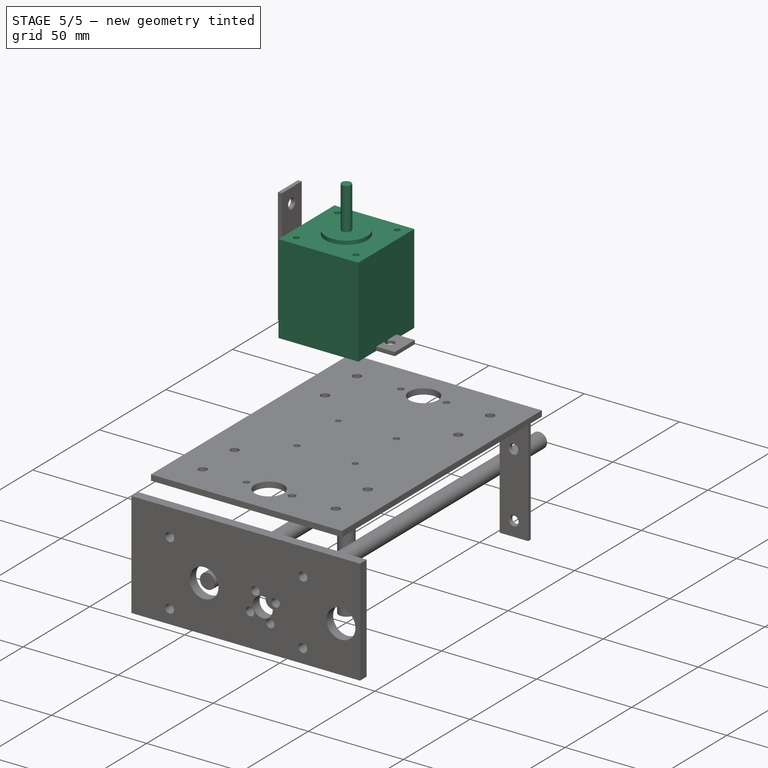
[diagram: stage 5 of 5 — iso view after this stage's code; geometry added in this stage tinted green]
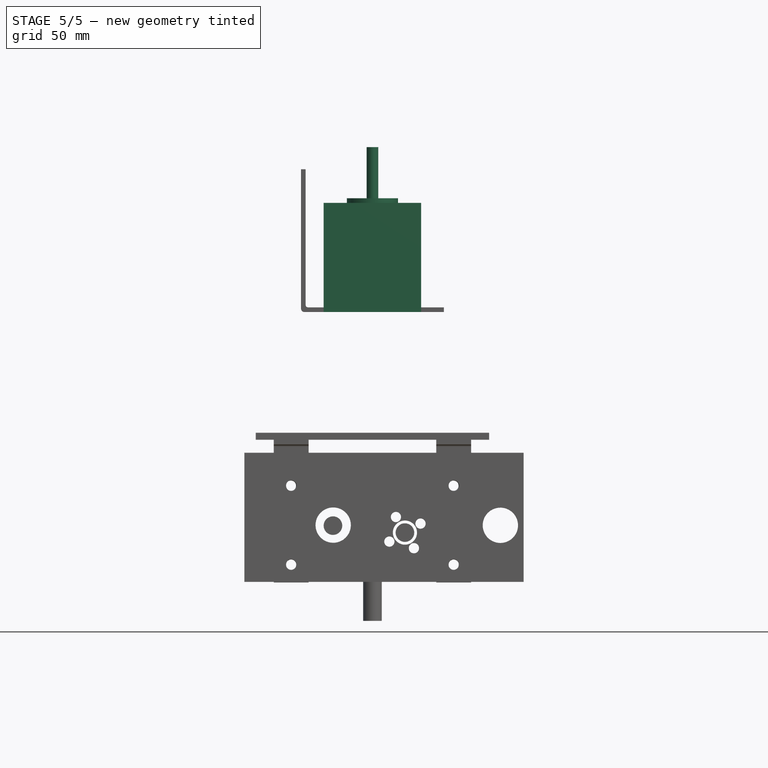
[diagram: stage 5 of 5 — front view after this stage's code; geometry added in this stage tinted green]
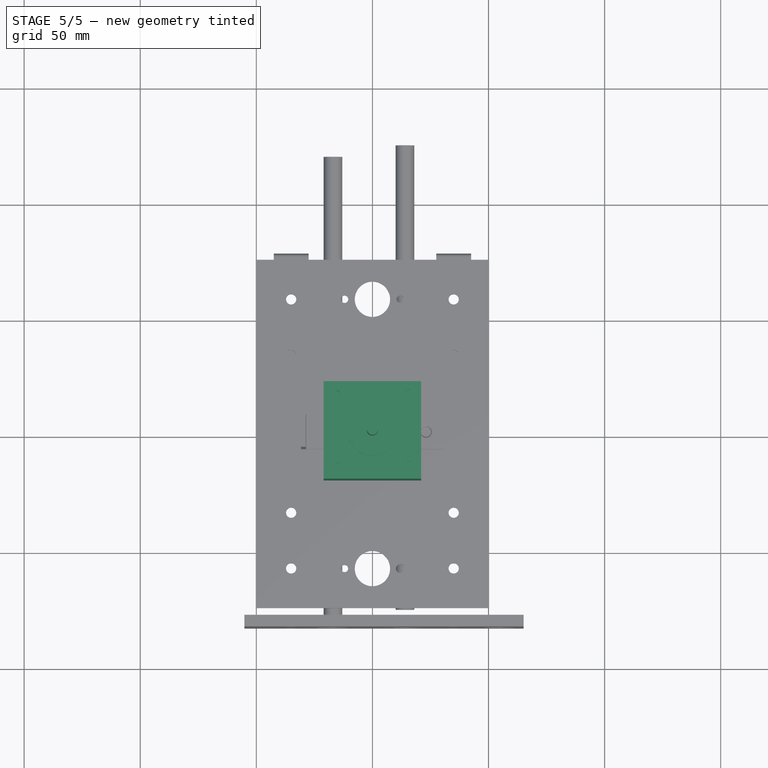
[diagram: stage 5 of 5 — top view after this stage's code; geometry added in this stage tinted green]
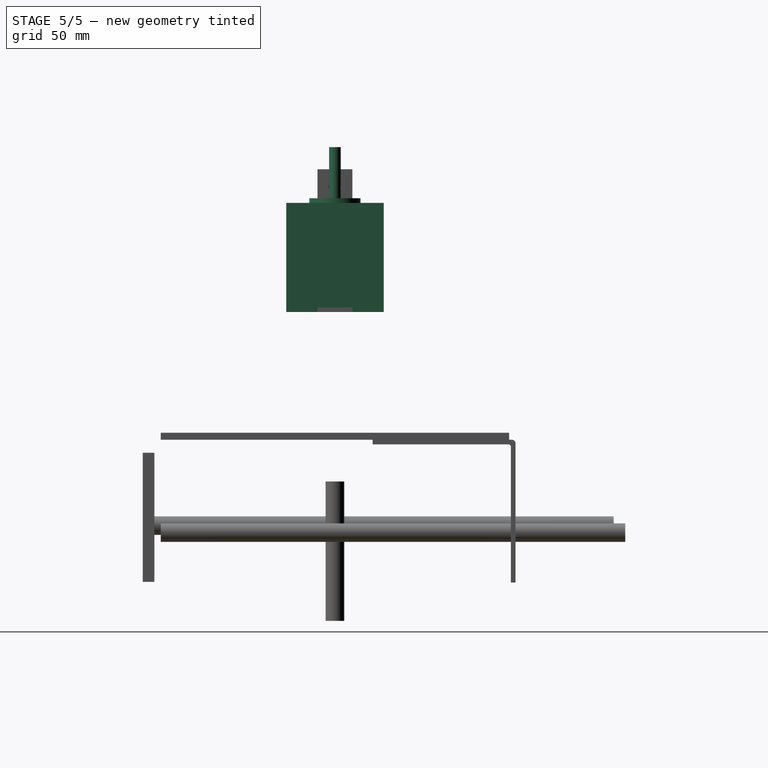
[diagram: stage 5 of 5 — right view after this stage's code; geometry added in this stage tinted green]
FEATURE [Sketcher::SketchObject] Sketch
  MapMode = 5
  Support = -> [XY_Plane]
  sketch-geometry (4):
    g0: LineSegment StartX=-21 StartY=-21 StartZ=0 EndX=21 EndY=-21 EndZ=0
    g1: LineSegment StartX=21 StartY=-21 StartZ=0 EndX=21 EndY=21 EndZ=0
    g2: LineSegment StartX=21 StartY=21 StartZ=0 EndX=-21 EndY=21 EndZ=0
    g3: LineSegment StartX=-21 StartY=21 StartZ=0 EndX=-21 EndY=-21 EndZ=0
  constraints (11):
    c: Coincident(g0,g1)
    c: Coincident(g1,g2)
    c: Coincident(g2,g3)
    c: Coincident(g3,g0)
    c: Horizontal(g0)
    c: Horizontal(g2)
    c: Vertical(g1)
    c: Vertical(g3)
    c: Equal(g2,g3)
    c: DistanceX(g2,g2) = 42
    c: Symmetric(g2,g0,g-1)
FEATURE [PartDesign::Pad] Pad
  Length = 47
  Length2 = 100
  Profile = -> Sketch
  Type = 0
FEATURE [Sketcher::SketchObject] Sketch001
  MapMode = 5
  Placement = pos=(0,0,47) rot=(0,0,1;0rad)
  Support = -> [Pad]
  sketch-geometry (4):
    g0: Circle CenterX=-15.5 CenterY=15.5 CenterZ=0 NormalX=0 NormalY=0 NormalZ=1 AngleXU=0 Radius=1.5
    g1: Circle CenterX=15.5 CenterY=16 CenterZ=0 NormalX=0 NormalY=0 NormalZ=1 AngleXU=0 Radius=1.5
    g2: Circle CenterX=15.5 CenterY=-15 CenterZ=0 NormalX=0 NormalY=0 NormalZ=1 AngleXU=0 Radius=1.5
    g3: Circle CenterX=-15.5 CenterY=-15.5 CenterZ=0 NormalX=0 NormalY=0 NormalZ=1 AngleXU=0 Radius=1.5
  constraints (12):
    c: Radius(g0) = 1.5
    c: DistanceX(g0,g-1) = 15.5
    c: DistanceY(g-1,g0) = 15.5
    c: Radius(g1) = 1.5
    c: Radius(g2) = 1.5
    c: Radius(g3) = 1.5
    c: DistanceX(g0,g1) = 31
    c: DistanceY(g2,g1) = 31
    c: DistanceX(g3,g2) = 31
    c: DistanceY(g3,g0) = 31
    c: Vertical(g1,g2)
    c: Vertical(g3,g0)
FEATURE [PartDesign::Pocket] Pocket
  BaseFeature = -> Pad
  Length = 4.5
  Length2 = 100
  Profile = -> Sketch001
  Type = 0
FEATURE [Sketcher::SketchObject] Sketch002
  MapMode = 5
  Placement = pos=(0,0,47) rot=(0,0,1;0rad)
  Support = -> [Pocket]
  sketch-geometry (1):
    g0: Circle CenterX=0 CenterY=0 CenterZ=0 NormalX=0 NormalY=0 NormalZ=1 AngleXU=0 Radius=11
  constraints (2):
    c: Coincident(g0,g-1)
    c: Radius(g0) = 11
FEATURE [PartDesign::Pad] Pad001
  BaseFeature = -> Pocket
  Length = 2
  Length2 = 100
  Profile = -> Sketch002
  Type = 0
FEATURE [Sketcher::SketchObject] Sketch003
  MapMode = 5
  Placement = pos=(0,0,49) rot=(0,0,1;0rad)
  Support = -> [Pad001]
  sketch-geometry (1):
    g0: Circle CenterX=0 CenterY=0 CenterZ=0 NormalX=0 NormalY=0 NormalZ=1 AngleXU=0 Radius=2.5
  constraints (2):
    c: Coincident(g0,g-1)
    c: Radius(g0) = 2.5
FEATURE [PartDesign::Pad] Pad002
  BaseFeature = -> Pad001
  Length = 22
  Length2 = 100
  Profile = -> Sketch003
  Type = 0
FEATURE [PartDesign::Body] Body  label="Motore"
  Group = -> [Sketch,Pad,Sketch001,Pocket,Sketch002,Pad001,Sketch003,Pad002]
  Origin = -> Origin
  Placement = pos=(0,0,0) rot=(0,1,0;3.14159rad)
  Tip = -> Pad002
FEATURE [Sketcher::SketchObject] Sketch004
  MapMode = 5
  Support = -> [XY_Plane001]
  sketch-geometry (4):
    g0: LineSegment StartX=-12.25 StartY=-10.5 StartZ=0 EndX=12.25 EndY=-10.5 EndZ=0
    g1: LineSegment StartX=12.25 StartY=10.5 StartZ=0 EndX=-12.25 EndY=10.5 EndZ=0
    g2: ArcOfCircle CenterX=0.540854 CenterY=0 CenterZ=0 NormalX=0 NormalY=0 NormalZ=1 AngleXU=0 Radius=16.5486 StartAngle=2.45424 EndAngle=3.82895
    g3: ArcOfCircle CenterX=-0.603398 CenterY=0 CenterZ=0 NormalX=0 NormalY=0 NormalZ=1 AngleXU=0 Radius=16.597 StartAngle=5.59822 EndAngle=6.96815
  constraints (7):
    c: Horizontal(g0)
    c: Horizontal(g1)
    c: PointOnObject(g0,g2)
    c: Coincident(g2,g1)
    c: PointOnObject(g1,g3)
    c: Coincident(g3,g0)
    c: Coincident(g3,g1)
FEATURE [PartDesign::Pad] Pad003
  Length = 5
  Length2 = 100
  Profile = -> Sketch004
  Type = 0
FEATURE [Sketcher::SketchObject] Sketch005
  MapMode = 5
  Placement = pos=(0,0,5) rot=(0,0,1;0rad)
  Support = -> [Pad003]
  sketch-geometry (2):
    g0: Circle CenterX=-12 CenterY=0 CenterZ=0 NormalX=0 NormalY=0 NormalZ=1 AngleXU=0 Radius=1.6
    g1: Circle CenterX=12 CenterY=0 CenterZ=0 NormalX=0 NormalY=0 NormalZ=1 AngleXU=0 Radius=1.6
  constraints (6):
    c: PointOnObject(g0,g-1)
    c: Radius(g0) = 1.6
    c: DistanceX(g0,g-1) = 12
    c: PointOnObject(g1,g-1)
    c: Radius(g1) = 1.6
    c: DistanceX(g-1,g1) = 12
FEATURE [PartDesign::Pocket] Pocket001
  BaseFeature = -> Pad003
  Length = 5
  Length2 = 100
  Profile = -> Sketch005
  Type = 1
FEATURE [Sketcher::SketchObject] Sketch006
  MapMode = 5
  Placement = pos=(0,0,5) rot=(0,0,1;0rad)
  Support = -> [Pocket001]
  sketch-geometry (1):
    g0: Circle CenterX=0 CenterY=0 CenterZ=0 NormalX=0 NormalY=0 NormalZ=1 AngleXU=0 Radius=7.5
  constraints (2):
    c: Coincident(g0,g-1)
    c: Radius(g0) = 7.5
FEATURE [PartDesign::Pad] Pad004
  BaseFeature = -> Pocket001
  Length = 19
  Length2 = 100
  Profile = -> Sketch006
  Type = 0
FEATURE [Sketcher::SketchObject] Sketch007
  MapMode = 5
  Placement = pos=(0,0,24) rot=(0,0,1;0rad)
  Support = -> [Pad004]
  sketch-geometry (1):
    g0: Circle CenterX=0 CenterY=0 CenterZ=0 NormalX=0 NormalY=0 NormalZ=1 AngleXU=0 Radius=4
  constraints (2):
    c: Coincident(g0,g-1)
    c: Radius(g0) = 4
FEATURE [PartDesign::Pocket] Pocket002
  BaseFeature = -> Pad004
  Length = 5
  Length2 = 100
  Profile = -> Sketch007
  Type = 1
FEATURE [Sketcher::SketchObject] Sketch008
  MapMode = 5
  Placement = pos=(0,0,0) rot=(1,0,0;3.14159rad)
  Support = -> [Pocket002]
  sketch-geometry (2):
    g0: Circle CenterX=-12 CenterY=0 CenterZ=0 NormalX=0 NormalY=0 NormalZ=1 AngleXU=0 Radius=3
    g1: Circle CenterX=12 CenterY=0 CenterZ=0 NormalX=0 NormalY=0 NormalZ=1 AngleXU=0 Radius=3
  constraints (6):
    c: PointOnObject(g0,g-1)
    c: Radius(g0) = 3
    c: DistanceX(g0,g-1) = 12
    c: PointOnObject(g1,g-1)
    c: Radius(g1) = 3
    c: DistanceX(g-1,g1) = 12
FEATURE [PartDesign::Pocket] Pocket003
  BaseFeature = -> Pocket002
  Length = 3.5
  Length2 = 100
  Profile = -> Sketch008
  Type = 0
FEATURE [Sketcher::SketchObject] Sketch013
  MapMode = 5
  Placement = pos=(0,0,0) rot=(1,0,0;3.14159rad)
  Support = -> [Pocket005]
  sketch-geometry (2):
    g0: Circle CenterX=-12 CenterY=0 CenterZ=0 NormalX=0 NormalY=0 NormalZ=1 AngleXU=0 Radius=3
    g1: Circle CenterX=12 CenterY=0 CenterZ=0 NormalX=0 NormalY=0 NormalZ=1 AngleXU=0 Radius=3
  constraints (6):
    c: PointOnObject(g0,g-1)
    c: Radius(g0) = 3
    c: DistanceX(g0,g-1) = 12
    c: PointOnObject(g1,g-1)
    c: Radius(g1) = 3
    c: DistanceX(g-1,g1) = 12
FEATURE [PartDesign::Pocket] Pocket006
  BaseFeature = -> Pocket005
  Length = 3.5
  Length2 = 100
  Profile = -> Sketch013
  Type = 0
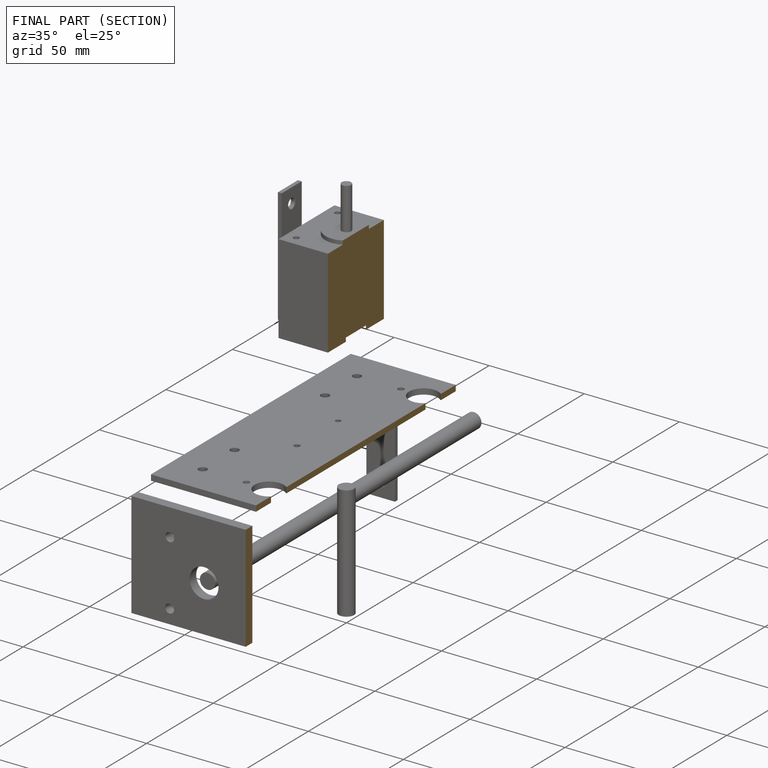
[diagram: finished part — half-section view (interior)]
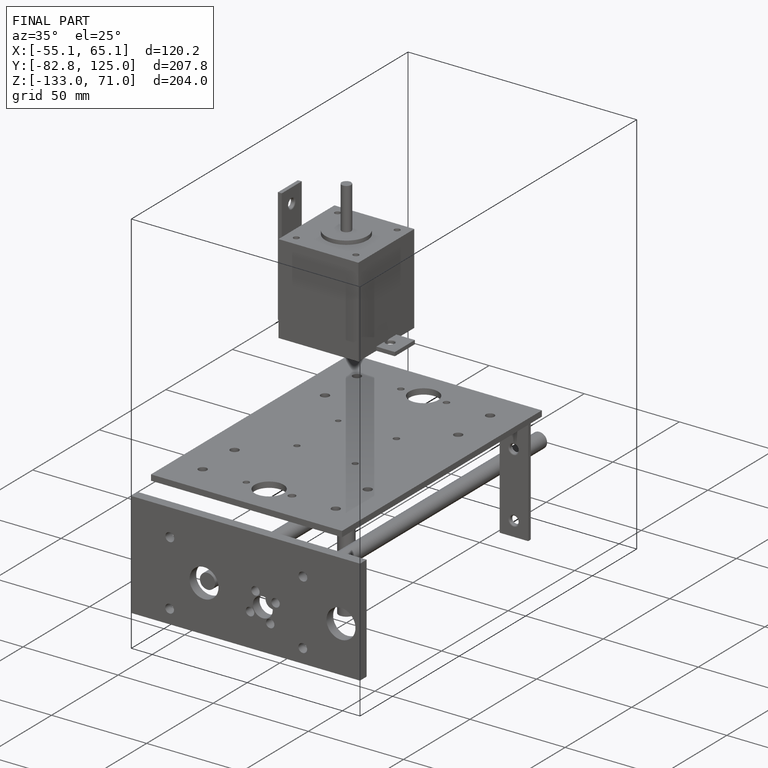
[diagram: finished part — iso view with bounding-box wireframe]
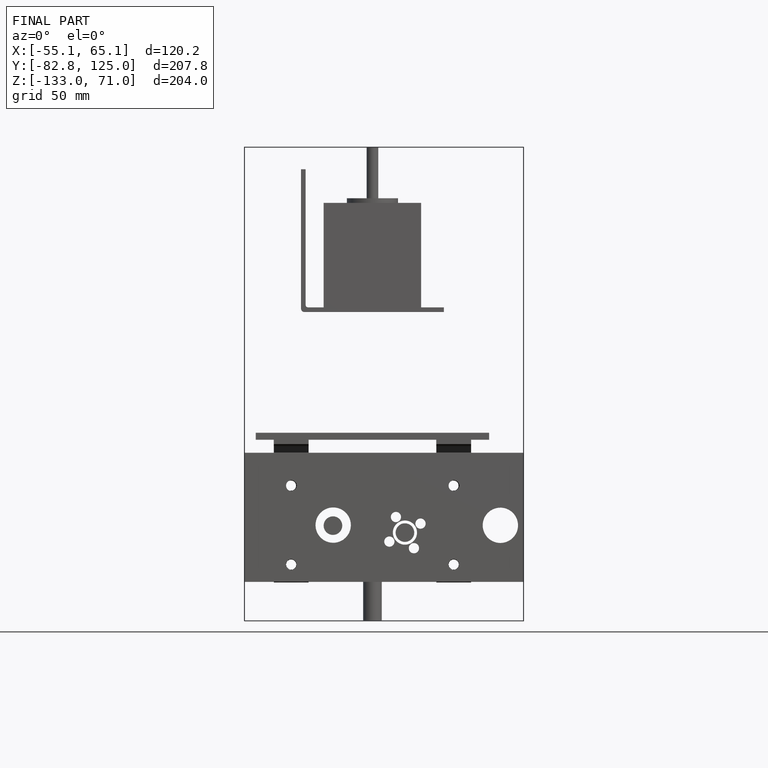
[diagram: finished part — front view with bounding-box wireframe]
